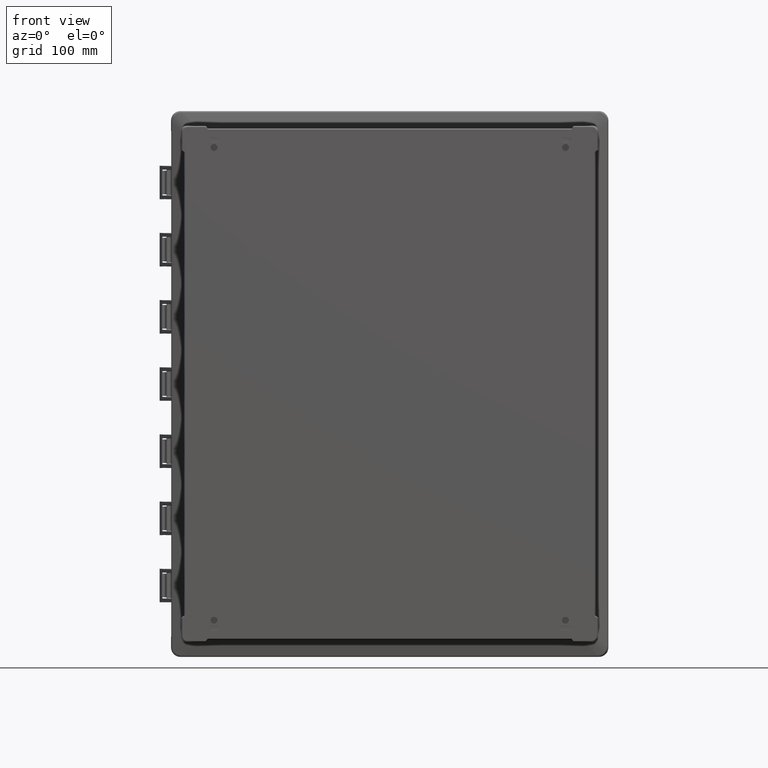
[diagram: clean part render]
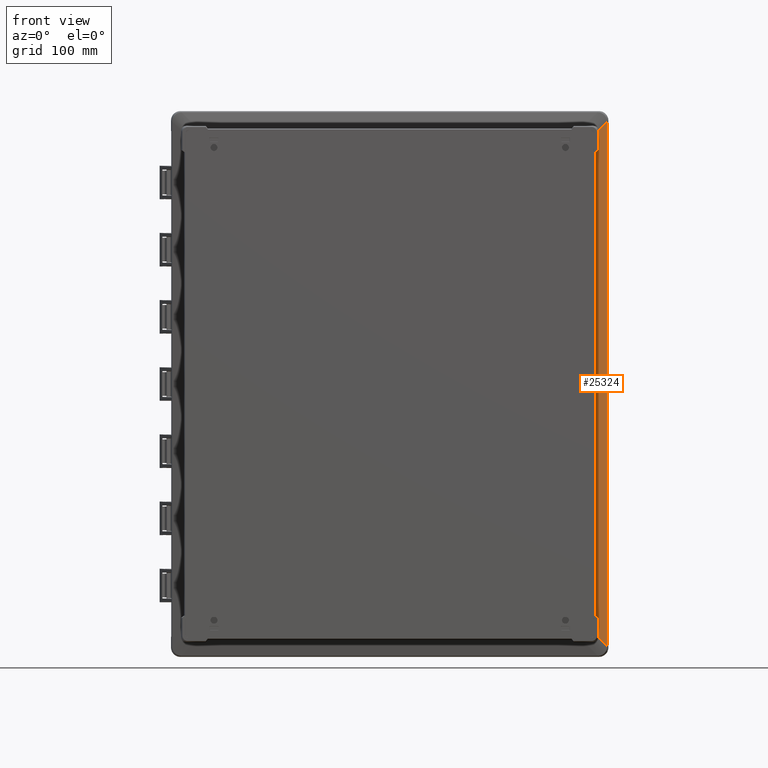
[diagram: same view with one face highlighted and labeled with its STEP entity id]
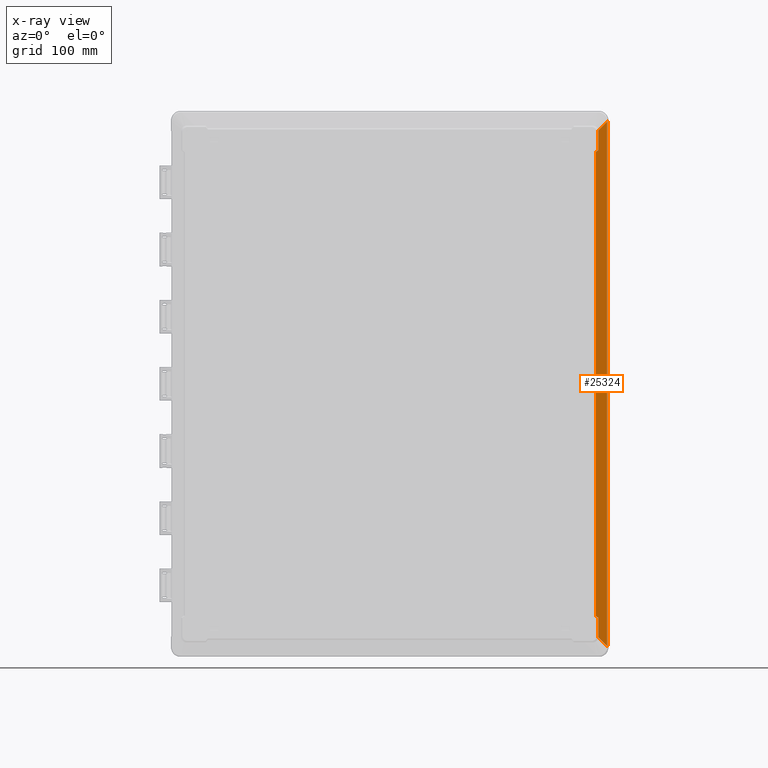
[diagram: x-ray of the same camera — body ghosted, the highlighted face saturated]
A machine part, front view. The second image highlights one B-rep face of the part: STEP entity #25324.
The next image is the same camera in x-ray: the body ghosted, the highlighted face saturated — about 0% of this face is hidden behind the body in this view.
In plain terms, the highlighted planar face has unit normal (0.2079, -0.9781, 0).
Its self-contained STEP definition (entity closure, byte-faithful):
#75 = VERTEX_POINT ( 'NONE', #19405 ) ;
#707 = CARTESIAN_POINT ( 'NONE',  ( 208.5928791320000100, -35.19256569062999800, -234.6123440854000000 ) ) ;
#935 = LINE ( 'NONE', #4676, #8152 ) ;
#989 = ORIENTED_EDGE ( 'NONE', *, *, #16177, .F. ) ;
#1175 = VECTOR ( 'NONE', #21923, 1000.000000000000000 ) ;
#1693 = VECTOR ( 'NONE', #26883, 1000.000000000000000 ) ;
#2057 = VERTEX_POINT ( 'NONE', #20262 ) ;
#2298 = EDGE_CURVE ( 'NONE', #24845, #24973, #21103, .T. ) ;
#2380 = CARTESIAN_POINT ( 'NONE',  ( 220.2591164273000000, -32.71282872151999800, -265.6291502733000100 ) ) ;
#2498 = DIRECTION ( 'NONE',  ( 0.9781476007337970300, 0.2079116908177993700, 0.0000000000000000000 ) ) ;
#2789 = EDGE_CURVE ( 'NONE', #16824, #6159, #9000, .T. ) ;
#2820 = CARTESIAN_POINT ( 'NONE',  ( 211.1977109727000100, -34.63889159085000100, -256.0979203957999700 ) ) ;
#3013 = ORIENTED_EDGE ( 'NONE', *, *, #2298, .F. ) ;
#3183 = FACE_OUTER_BOUND ( 'NONE', #8583, .T. ) ;
#3428 = ORIENTED_EDGE ( 'NONE', *, *, #10607, .T. ) ;
#3742 = LINE ( 'NONE', #707, #1693 ) ;
#4641 = ORIENTED_EDGE ( 'NONE', *, *, #8412, .F. ) ;
#4676 = CARTESIAN_POINT ( 'NONE',  ( 220.2591164273000000, -32.71282872151999800, -265.6291502733000100 ) ) ;
#5209 = LINE ( 'NONE', #10508, #24348 ) ;
#5384 = DIRECTION ( 'NONE',  ( -0.6998974287779069500, -0.1487679206146015100, 0.6985783384747069600 ) ) ;
#5509 = DIRECTION ( 'NONE',  ( 0.2079116908177993900, -0.9781476007337971400, 0.0000000000000000000 ) ) ;
#6159 = VERTEX_POINT ( 'NONE', #27185 ) ;
#6245 = AXIS2_PLACEMENT_3D ( 'NONE', #8527, #5509, #2498 ) ;
#6345 = ORIENTED_EDGE ( 'NONE', *, *, #15499, .T. ) ;
#6559 = CARTESIAN_POINT ( 'NONE',  ( 211.1778063889000000, -34.64312244074000100, -256.5649556971000000 ) ) ;
#7530 = DIRECTION ( 'NONE',  ( -0.7615498229583060900, -0.1618724119039013100, -0.6275660837048050400 ) ) ;
#7571 = EDGE_CURVE ( 'NONE', #16824, #20660, #12813, .T. ) ;
#8152 = VECTOR ( 'NONE', #5384, 1000.000000000000000 ) ;
#8412 = EDGE_CURVE ( 'NONE', #28680, #10366, #935, .T. ) ;
#8527 = CARTESIAN_POINT ( 'NONE',  ( 220.8614313527000100, -32.58480441393999900, -170.1582404675000100 ) ) ;
#8583 = EDGE_LOOP ( 'NONE', ( #22436, #3013, #21740, #6345, #989, #12061, #13284, #3428, #4641, #26670 ) ) ;
#8892 = DIRECTION ( 'NONE',  ( 2.498414506784999900E-014, 4.045227017604000000E-013, -1.000000000000000000 ) ) ;
#8917 = CARTESIAN_POINT ( 'NONE',  ( 211.1977109727000100, -34.63889159085999800, -236.7588932246000000 ) ) ;
#9000 = LINE ( 'NONE', #8917, #15397 ) ;
#9072 = B_SPLINE_CURVE_WITH_KNOTS ( 'NONE', 3,
 ( #2820, #28945, #25975, #22993 ),
 .UNSPECIFIED., .F., .F.,
 ( 4, 4 ),
 ( 0.0000000000000000000, 1.000000000000000000 ),
 .UNSPECIFIED. ) ;
#9377 = VERTEX_POINT ( 'NONE', #11558 ) ;
#10333 = B_SPLINE_CURVE_WITH_KNOTS ( 'NONE', 3,
 ( #2380, #28498, #25536, #22564 ),
 .UNSPECIFIED., .F., .F.,
 ( 4, 4 ),
 ( 0.0000000000000000000, 1.000000000000000000 ),
 .UNSPECIFIED. ) ;
#10366 = VERTEX_POINT ( 'NONE', #6559 ) ;
#10508 = CARTESIAN_POINT ( 'NONE',  ( 211.1977109727000100, -34.63889159085999800, 236.7588932246000000 ) ) ;
#10607 = EDGE_CURVE ( 'NONE', #6159, #10366, #9072, .T. ) ;
#11510 = PLANE ( 'NONE',  #6245 ) ;
#11558 = CARTESIAN_POINT ( 'NONE',  ( 208.5928791320000100, -35.19256569062999800, 234.6123440854000000 ) ) ;
#12061 = ORIENTED_EDGE ( 'NONE', *, *, #7571, .F. ) ;
#12694 = VECTOR ( 'NONE', #18775, 1000.000000000000000 ) ;
#12813 = LINE ( 'NONE', #15820, #12694 ) ;
#13284 = ORIENTED_EDGE ( 'NONE', *, *, #2789, .T. ) ;
#14490 = EDGE_CURVE ( 'NONE', #2057, #24845, #27830, .T. ) ;
#15397 = VECTOR ( 'NONE', #8892, 1000.000000000000000 ) ;
#15499 = EDGE_CURVE ( 'NONE', #2057, #9377, #5209, .T. ) ;
#15820 = CARTESIAN_POINT ( 'NONE',  ( 211.1977109727000100, -34.63889159085999800, -236.7588932246000000 ) ) ;
#16177 = EDGE_CURVE ( 'NONE', #20660, #9377, #3742, .T. ) ;
#16824 = VERTEX_POINT ( 'NONE', #24403 ) ;
#16834 = CARTESIAN_POINT ( 'NONE',  ( 211.1778063889000000, -34.64312244074000100, 256.5649556971000000 ) ) ;
#16889 = CARTESIAN_POINT ( 'NONE',  ( 211.1910760234999900, -34.64030189283000300, 256.4095728044000000 ) ) ;
#16919 = CARTESIAN_POINT ( 'NONE',  ( 211.1977109727000100, -34.63889159085000100, 256.2538943746000100 ) ) ;
#17063 = CARTESIAN_POINT ( 'NONE',  ( 211.1977109727000100, -34.63889159085000100, 256.0979203957999700 ) ) ;
#17138 = EDGE_CURVE ( 'NONE', #28680, #75, #10333, .T. ) ;
#18341 = CARTESIAN_POINT ( 'NONE',  ( 211.1977109727000100, -34.63889159085000100, 256.0979203957999700 ) ) ;
#18775 = DIRECTION ( 'NONE',  ( -0.7615498229583060900, -0.1618724119039013100, 0.6275660837048050400 ) ) ;
#19405 = CARTESIAN_POINT ( 'NONE',  ( 220.2591164273000000, -32.71282872151999800, 265.6291502733000100 ) ) ;
#19560 = CARTESIAN_POINT ( 'NONE',  ( 211.1778063889000000, -34.64312244074000100, 256.5649556971000000 ) ) ;
#19667 = VECTOR ( 'NONE', #20043, 1000.000000000000000 ) ;
#20043 = DIRECTION ( 'NONE',  ( -0.6998974287779069500, -0.1487679206146015100, -0.6985783384747069600 ) ) ;
#20262 = CARTESIAN_POINT ( 'NONE',  ( 211.1977109727000100, -34.63889159085999800, 236.7588932246000000 ) ) ;
#20660 = VERTEX_POINT ( 'NONE', #27137 ) ;
#21103 = B_SPLINE_CURVE_WITH_KNOTS ( 'NONE', 3,
 ( #17063, #16919, #16889, #16834 ),
 .UNSPECIFIED., .F., .F.,
 ( 4, 4 ),
 ( 0.0000000000000000000, 1.000000000000000000 ),
 .UNSPECIFIED. ) ;
#21405 = CARTESIAN_POINT ( 'NONE',  ( 220.2591164273000000, -32.71282872151999800, -265.6291502733000100 ) ) ;
#21740 = ORIENTED_EDGE ( 'NONE', *, *, #14490, .F. ) ;
#21923 = DIRECTION ( 'NONE',  ( 2.498414506784999900E-014, 4.045227017604000000E-013, 1.000000000000000000 ) ) ;
#22436 = ORIENTED_EDGE ( 'NONE', *, *, #28072, .T. ) ;
#22564 = CARTESIAN_POINT ( 'NONE',  ( 220.2591164273000000, -32.71282872151999800, 265.6291502733000100 ) ) ;
#22963 = CARTESIAN_POINT ( 'NONE',  ( 220.2591164273000000, -32.71282872151999800, 265.6291502733000100 ) ) ;
#22993 = CARTESIAN_POINT ( 'NONE',  ( 211.1778063889000000, -34.64312244074000100, -256.5649556971000000 ) ) ;
#24348 = VECTOR ( 'NONE', #7530, 1000.000000000000000 ) ;
#24403 = CARTESIAN_POINT ( 'NONE',  ( 211.1977109727000100, -34.63889159085999800, -236.7588932246000000 ) ) ;
#24845 = VERTEX_POINT ( 'NONE', #18341 ) ;
#24878 = CARTESIAN_POINT ( 'NONE',  ( 211.1977109727000100, -34.63889159085999800, 236.7588932246000000 ) ) ;
#24973 = VERTEX_POINT ( 'NONE', #19560 ) ;
#25324 = ADVANCED_FACE ( 'NONE', ( #3183 ), #11510, .T. ) ;
#25536 = CARTESIAN_POINT ( 'NONE',  ( 220.2591167693666700, -32.71283033081707000, 88.54305009110017000 ) ) ;
#25945 = LINE ( 'NONE', #22963, #19667 ) ;
#25975 = CARTESIAN_POINT ( 'NONE',  ( 211.1910760234999900, -34.64030189283000300, -256.4095728044000000 ) ) ;
#26670 = ORIENTED_EDGE ( 'NONE', *, *, #17138, .T. ) ;
#26883 = DIRECTION ( 'NONE',  ( 0.0000000000000000000, 0.0000000000000000000, 1.000000000000000000 ) ) ;
#27137 = CARTESIAN_POINT ( 'NONE',  ( 208.5928791320000100, -35.19256569062999800, -234.6123440854000000 ) ) ;
#27185 = CARTESIAN_POINT ( 'NONE',  ( 211.1977109727000100, -34.63889159085000100, -256.0979203957999700 ) ) ;
#27830 = LINE ( 'NONE', #24878, #1175 ) ;
#28072 = EDGE_CURVE ( 'NONE', #75, #24973, #25945, .T. ) ;
#28498 = CARTESIAN_POINT ( 'NONE',  ( 220.2591167693666700, -32.71283033081707000, -88.54305009110000000 ) ) ;
#28680 = VERTEX_POINT ( 'NONE', #21405 ) ;
#28945 = CARTESIAN_POINT ( 'NONE',  ( 211.1977109727000100, -34.63889159085000100, -256.2538943746000100 ) ) ;